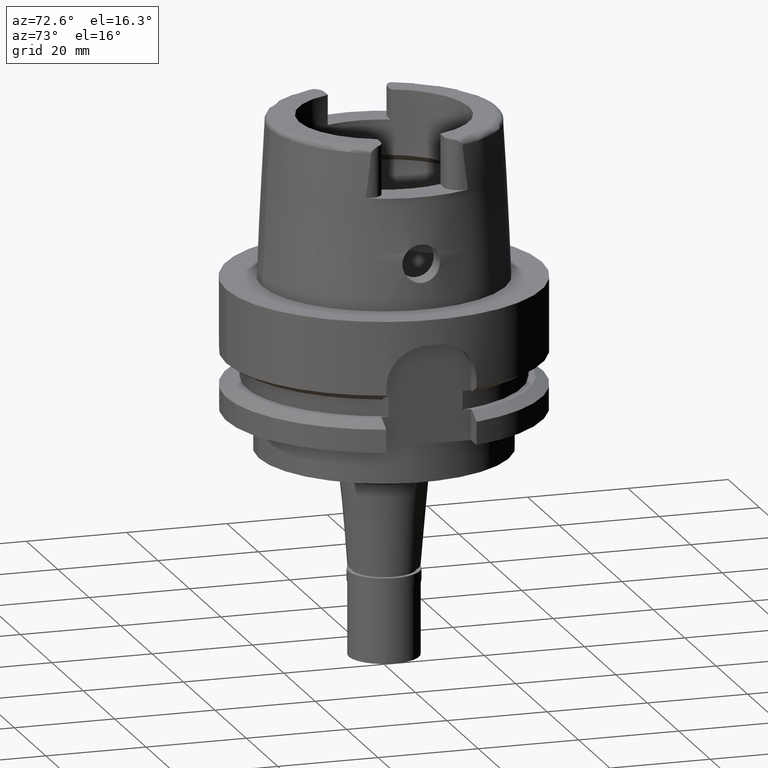
[diagram: clean part render]
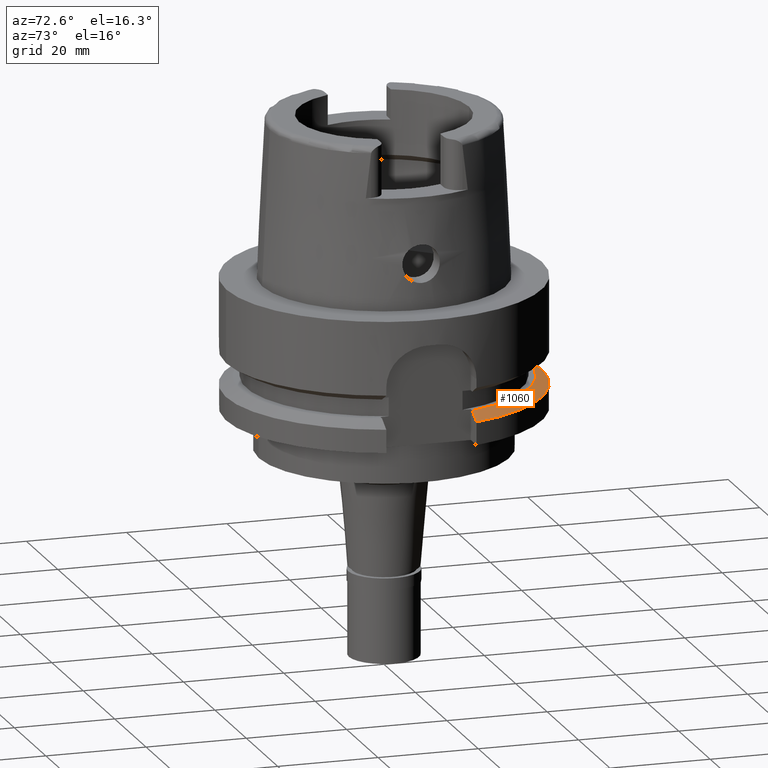
[diagram: same view with one face highlighted and labeled with its STEP entity id]
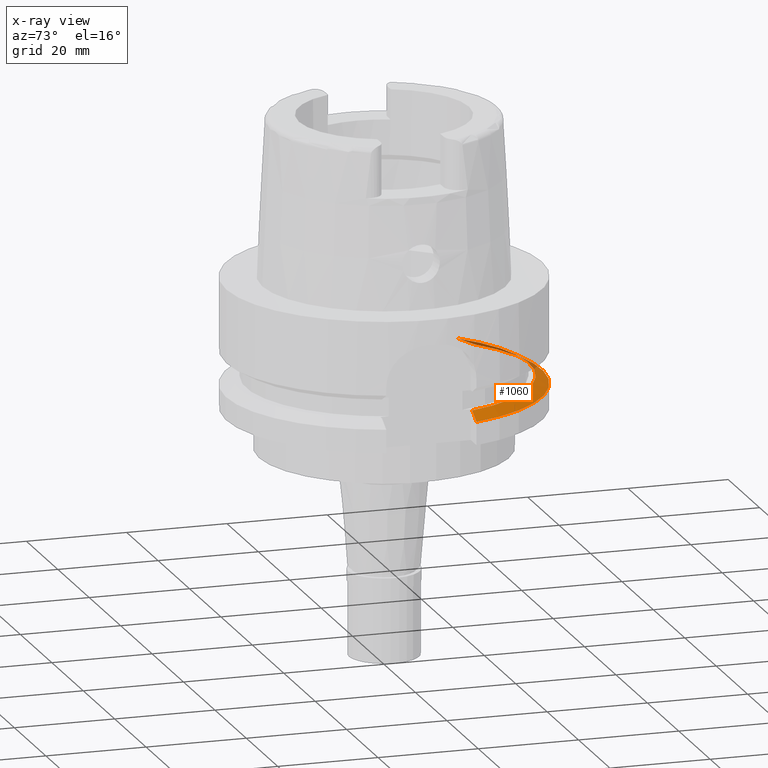
[diagram: x-ray of the same camera — body ghosted, the highlighted face saturated]
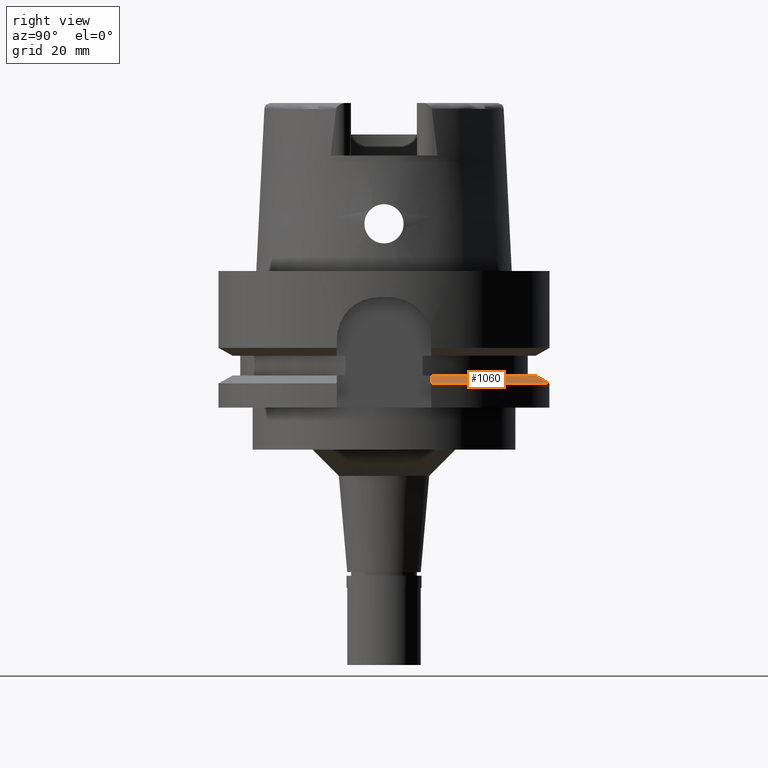
[diagram: same view with one face highlighted and labeled with its STEP entity id]
A machine part, auxiliary view. The second image highlights one B-rep face of the part: STEP entity #1060.
The next image is the same camera in x-ray: the body ghosted, the highlighted face saturated — about 11% of this face is hidden behind the body in this view.
A second angle (right view) of the same face is appended — the face is thin or edge-on in the first view.
In plain terms, the highlighted conical surface has half-angle 60 deg.
Its self-contained STEP definition (entity closure, byte-faithful):
#86 = DIRECTION ( 'NONE',  ( 0.0000000000000000000, 0.0000000000000000000, -1.000000000000000000 ) ) ;
#304 = DIRECTION ( 'NONE',  ( 0.0000000000000000000, 0.0000000000000000000, -1.000000000000000000 ) ) ;
#612 = CARTESIAN_POINT ( 'NONE',  ( 0.0000000000000000000, 0.0000000000000000000, -20.62624953738000144 ) ) ;
#784 = DIRECTION ( 'NONE',  ( -0.6349206349206079070, 0.7725773665802099233, 0.0000000000000000000 ) ) ;
#991 = FACE_OUTER_BOUND ( 'NONE', #3610, .T. ) ;
#1060 = ADVANCED_FACE ( 'NONE', ( #991 ), #1125, .T. ) ;
#1125 = CONICAL_SURFACE ( 'NONE', #1936, 30.19879763209999979, 1.047197551196400456 ) ;
#1126 = CARTESIAN_POINT ( 'NONE',  ( -19.99997157143832638, 21.97734632294608303, -20.34131021940153161 ) ) ;
#1248 = ORIENTED_EDGE ( 'NONE', *, *, #3231, .F. ) ;
#1454 = CIRCLE ( 'NONE', #2601, 28.89759526419000224 ) ;
#1499 = CARTESIAN_POINT ( 'NONE',  ( -19.99999697716999947, 24.33618953150000053, -21.37748823999999814 ) ) ;
#1557 = CARTESIAN_POINT ( 'NONE',  ( 0.0000000000000000000, 0.0000000000000000000, -21.37749907476000288 ) ) ;
#1611 = ORIENTED_EDGE ( 'NONE', *, *, #2981, .T. ) ;
#1614 = CARTESIAN_POINT ( 'NONE',  ( 28.35093401776000022, 9.000000322215999660, -20.36411338231999935 ) ) ;
#1677 = DIRECTION ( 'NONE',  ( 0.0000000000000000000, 1.000000000000000000, 0.0000000000000000000 ) ) ;
#1936 = AXIS2_PLACEMENT_3D ( 'NONE', #612, #86, #4431 ) ;
#1965 = ORIENTED_EDGE ( 'NONE', *, *, #2216, .T. ) ;
#2216 = EDGE_CURVE ( 'NONE', #3146, #3388, #4507, .T. ) ;
#2228 = VERTEX_POINT ( 'NONE', #4055 ) ;
#2437 = ORIENTED_EDGE ( 'NONE', *, *, #5059, .F. ) ;
#2507 = CARTESIAN_POINT ( 'NONE',  ( 0.0000000000000000000, 0.0000000000000000000, -19.87500000000000000 ) ) ;
#2528 = CARTESIAN_POINT ( 'NONE',  ( 27.75547480496999952, 8.999999267083001797, -20.03690843721999926 ) ) ;
#2601 = AXIS2_PLACEMENT_3D ( 'NONE', #2507, #5545, #1677 ) ;
#2928 = CARTESIAN_POINT ( 'NONE',  ( 29.25977795145999849, 8.999999971619001116, -20.86496114983999917 ) ) ;
#2981 = EDGE_CURVE ( 'NONE', #3388, #3623, #1454, .T. ) ;
#3005 = B_SPLINE_CURVE_WITH_KNOTS ( 'NONE', 3,
 ( #5340, #5104, #2928, #1614, #2528, #5510 ),
 .UNSPECIFIED., .F., .F.,
 ( 4, 1, 1, 4 ),
 ( 0.0000000000000000000, 0.3333333333333000081, 0.6666666666667000474, 1.000000000000000000 ),
 .UNSPECIFIED. ) ;
#3146 = VERTEX_POINT ( 'NONE', #4092 ) ;
#3231 = EDGE_CURVE ( 'NONE', #2228, #3623, #3005, .T. ) ;
#3345 = CIRCLE ( 'NONE', #4435, 31.50000000000000711 ) ;
#3388 = VERTEX_POINT ( 'NONE', #4744 ) ;
#3575 = CARTESIAN_POINT ( 'NONE',  ( -19.99999396833548104, 23.13594272559172538, -20.84213052925520770 ) ) ;
#3610 = EDGE_LOOP ( 'NONE', ( #1965, #1611, #1248, #2437 ) ) ;
#3623 = VERTEX_POINT ( 'NONE', #4280 ) ;
#4055 = CARTESIAN_POINT ( 'NONE',  ( 30.18691774055000110, 8.999999851412001206, -21.37749787637000054 ) ) ;
#4092 = CARTESIAN_POINT ( 'NONE',  ( -19.99999697716999947, 24.33618953150000053, -21.37748823999999814 ) ) ;
#4280 = CARTESIAN_POINT ( 'NONE',  ( 27.46035345827000285, 9.000000000000000000, -19.87500000000000000 ) ) ;
#4431 = DIRECTION ( 'NONE',  ( 0.0000000000000000000, -1.000000000000000000, 0.0000000000000000000 ) ) ;
#4435 = AXIS2_PLACEMENT_3D ( 'NONE', #1557, #304, #784 ) ;
#4507 = B_SPLINE_CURVE_WITH_KNOTS ( 'NONE', 3,
 ( #1499, #3575, #1126, #5385 ),
 .UNSPECIFIED., .F., .F.,
 ( 4, 4 ),
 ( 0.0000000000000000000, 1.000000000000000000 ),
 .UNSPECIFIED. ) ;
#4744 = CARTESIAN_POINT ( 'NONE',  ( -19.99998591410000159, 20.85848281364000201, -19.87500000000000000 ) ) ;
#5059 = EDGE_CURVE ( 'NONE', #3146, #2228, #3345, .T. ) ;
#5104 = CARTESIAN_POINT ( 'NONE',  ( 29.87612783690000029, 8.999999851412001206, -21.20554300118000057 ) ) ;
#5340 = CARTESIAN_POINT ( 'NONE',  ( 30.18691774055000110, 8.999999851412001206, -21.37749787637000054 ) ) ;
#5385 = CARTESIAN_POINT ( 'NONE',  ( -19.99998591410000159, 20.85848281364000201, -19.87500000000000000 ) ) ;
#5510 = CARTESIAN_POINT ( 'NONE',  ( 27.46035345827000285, 9.000000000000000000, -19.87500000000000000 ) ) ;
#5545 = DIRECTION ( 'NONE',  ( 0.0000000000000000000, 0.0000000000000000000, -1.000000000000000000 ) ) ;